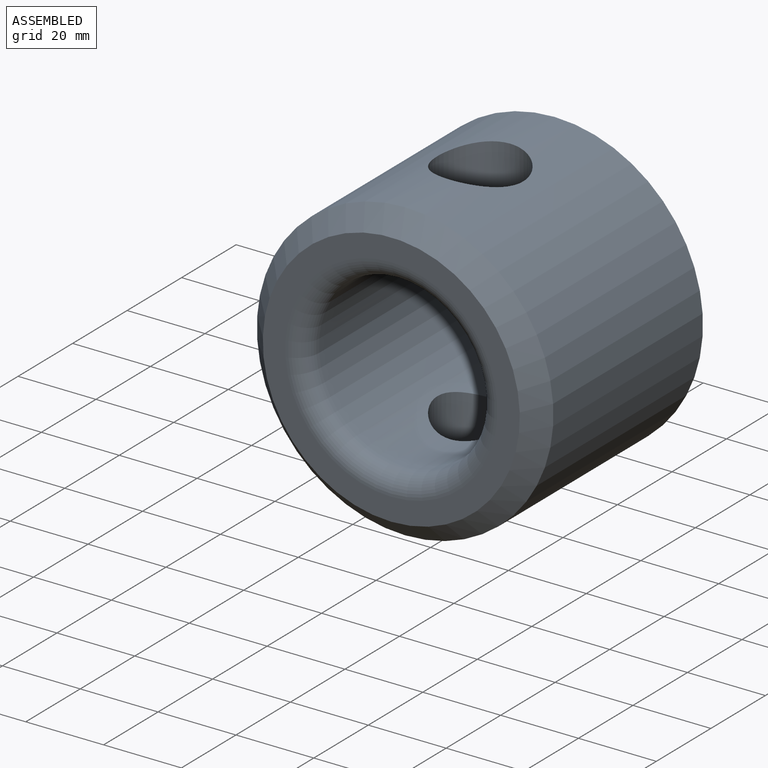
[diagram: assembled view]
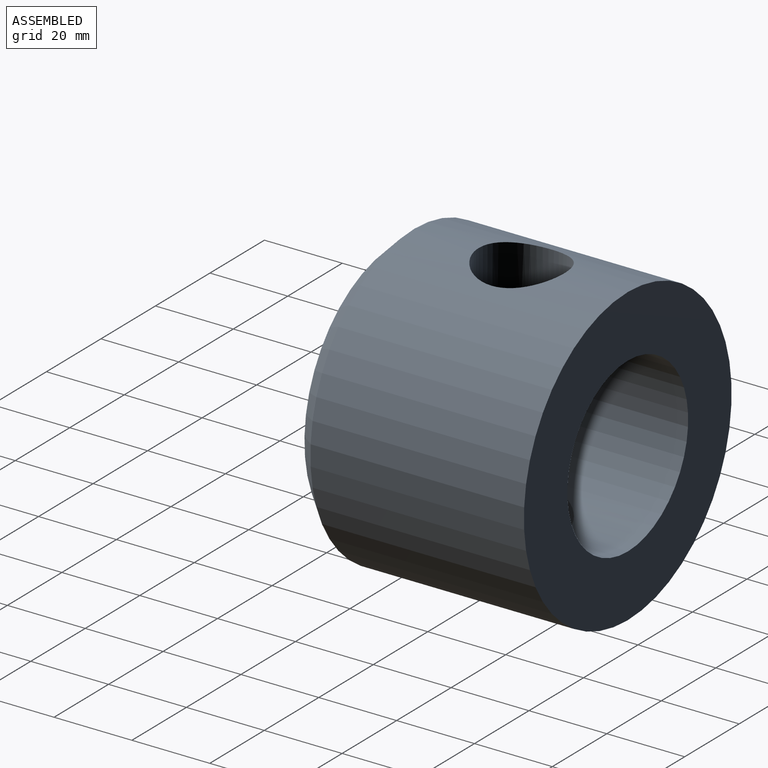
[diagram: assembled view, second angle]
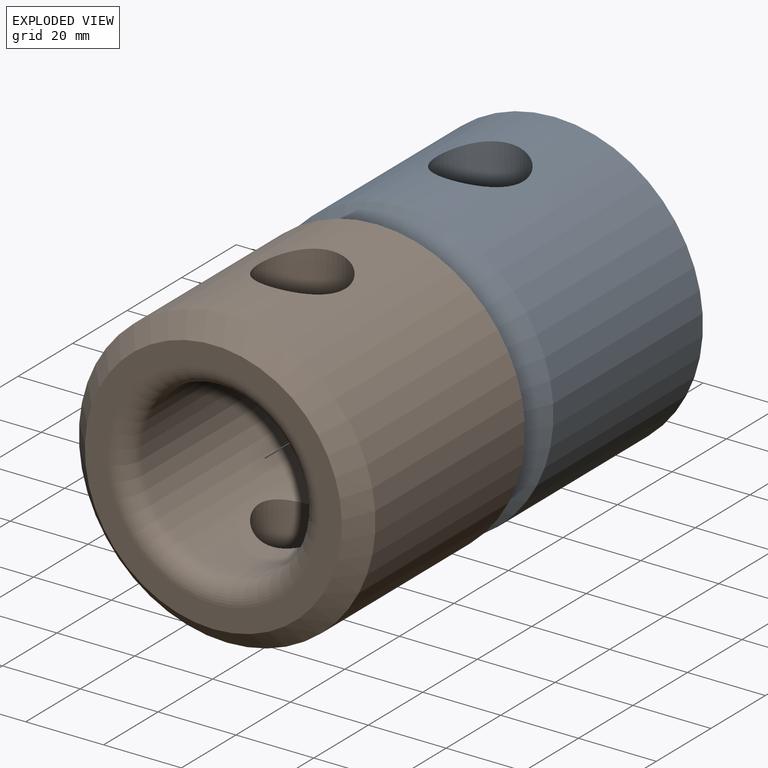
[diagram: exploded view]
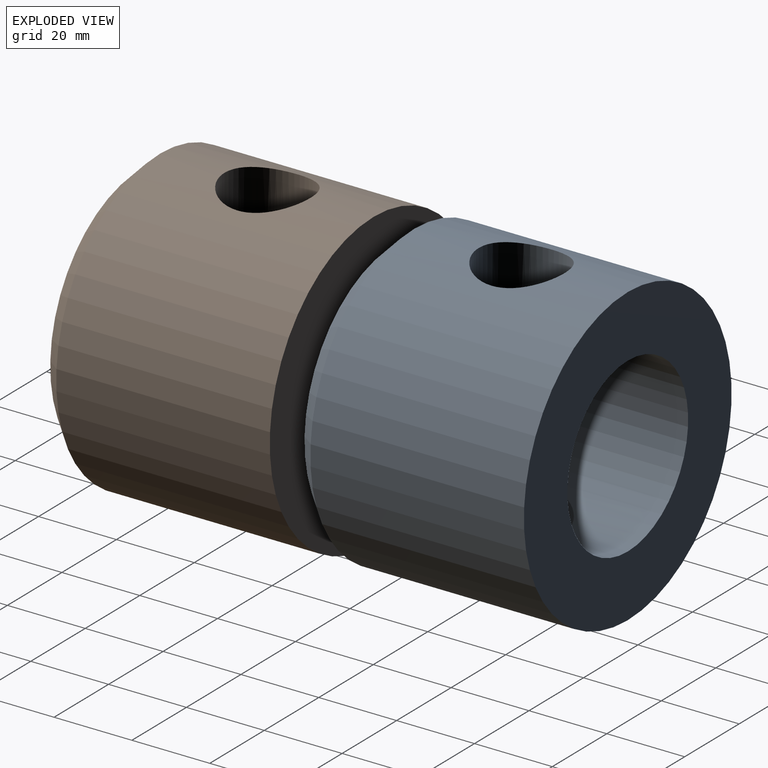
[diagram: exploded view, second angle]
ASSEMBLY  parts=2 mates=2
PART A: 8 faces, bbox 76.2x59.9x76.2 mm
  f0: cylinder r=38.1mm len=76.2mm, axis (0,1,0), area 12365.3mm2, adj f2,f5,f6,f7
  f1: plane 66.04x66.04mm, normal (0,-1,0), area 1093.9mm2, adj f4,f5
  f2: plane 76.2x76.2mm, normal (0,1,0), area 3017.4mm2, adj f0,f3
  f3: cylinder r=22.16mm len=54.86mm, axis (0,-1,0), area 6854.4mm2, adj f2,f4,f6,f7
  f4: torus R=27.24mm, axis (0,-1,0), area 1203.7mm2, adj f1,f3
  f5: cone r=33.02mm half-angle=45deg, axis (0,1,0), area 1605.2mm2, adj f0,f1
  f6: cylinder r=11mm len=22.01mm, axis (0,0,1), area 1145.4mm2, adj f0,f3
  f7: cylinder r=11mm len=22.01mm, axis (0,0,1), area 1145.4mm2, adj f0,f3
PART B: same geometry as A
PLACE A t=(-5.57,33.48,98.14)mm
PLACE B t=(-5.57,33.48,98.14)mm
MATE slider B.f3 <-> A.f3  axis (0,-1,0) through (-5.57,33.48,98.14)mm
MATE slider B.f6 <-> A.f6  axis (0,0,1) through (-5.57,6.2,136.37)mm
